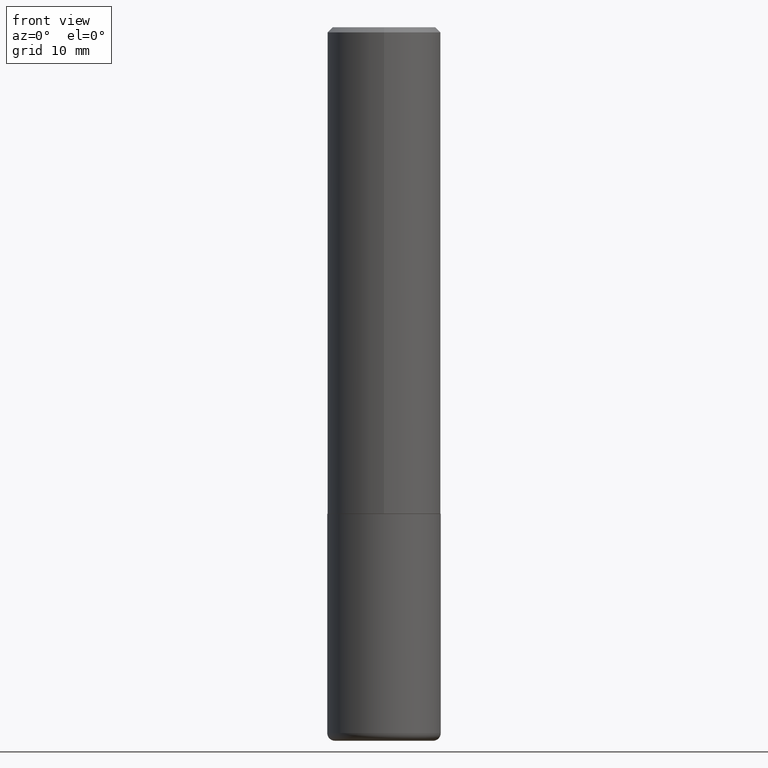
[diagram: clean part render]
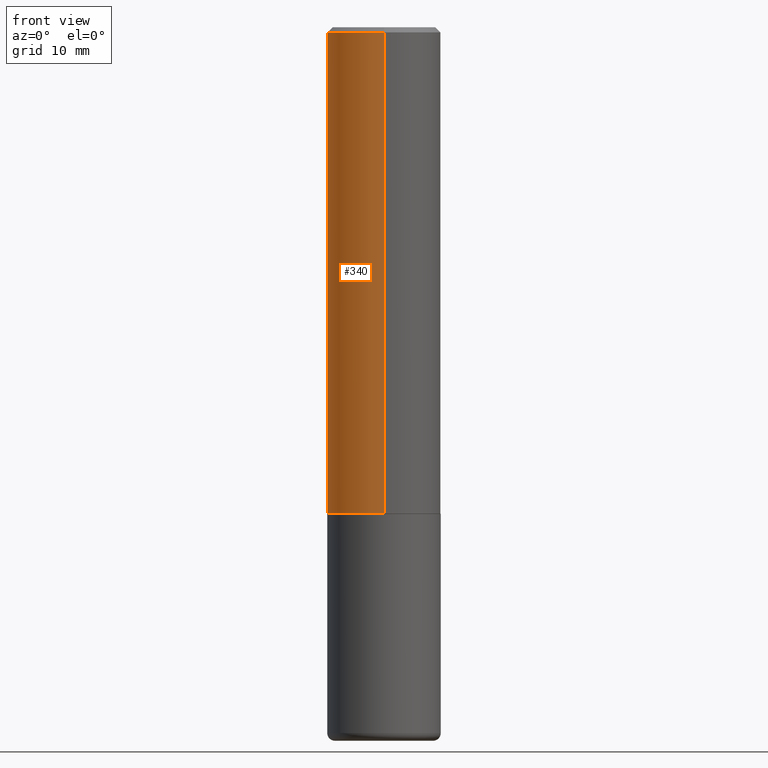
[diagram: same view with one face highlighted and labeled with its STEP entity id]
A machine part, front view. The second image highlights one B-rep face of the part: STEP entity #340.
In plain terms, the highlighted cylindrical surface (partial cylindrical patch) has radius 5.5563 mm, axis along (-0, 0, 1).
Its self-contained STEP definition (entity closure, byte-faithful):
#18 = CARTESIAN_POINT ( 'NONE',  ( 1.554312234475219551E-15, 0.2187500000000000833, -7.638981828136507804E-16 ) ) ;
#19 = CARTESIAN_POINT ( 'NONE',  ( 4.581991134734604485E-29, -6.544206603852712761E-15, -1.874000000000000110 ) ) ;
#24 = VECTOR ( 'NONE', #147, 39.37007874015748143 ) ;
#48 = EDGE_CURVE ( 'NONE', #118, #138, #390, .T. ) ;
#56 = AXIS2_PLACEMENT_3D ( 'NONE', #19, #275, #88 ) ;
#59 = EDGE_CURVE ( 'NONE', #347, #273, #200, .T. ) ;
#61 = CYLINDRICAL_SURFACE ( 'NONE', #395, 0.2187500000000000833 ) ;
#66 = DIRECTION ( 'NONE',  ( -6.982962677686265922E-15, -1.000000000000000000, 3.492105978576688042E-15 ) ) ;
#77 = ORIENTED_EDGE ( 'NONE', *, *, #48, .T. ) ;
#85 = VECTOR ( 'NONE', #327, 39.37007874015748143 ) ;
#86 = EDGE_CURVE ( 'NONE', #118, #347, #313, .T. ) ;
#87 = ORIENTED_EDGE ( 'NONE', *, *, #86, .F. ) ;
#88 = DIRECTION ( 'NONE',  ( -6.982962677686265922E-15, -1.000000000000000000, 3.746534391310986401E-15 ) ) ;
#118 = VERTEX_POINT ( 'NONE', #165 ) ;
#121 = ORIENTED_EDGE ( 'NONE', *, *, #392, .T. ) ;
#138 = VERTEX_POINT ( 'NONE', #269 ) ;
#147 = DIRECTION ( 'NONE',  ( -2.445032622590504256E-29, 3.492105978576687648E-15, 1.000000000000000000 ) ) ;
#164 = ORIENTED_EDGE ( 'NONE', *, *, #59, .F. ) ;
#165 = CARTESIAN_POINT ( 'NONE',  ( 1.554312234475242822E-15, 0.2187499999999936440, -1.874000000000000776 ) ) ;
#176 = DIRECTION ( 'NONE',  ( -2.445032622590504256E-29, 3.492105978576687648E-15, 1.000000000000000000 ) ) ;
#194 = CARTESIAN_POINT ( 'NONE',  ( -1.527523085743871237E-15, -0.2187500000000000833, 7.638981828136507804E-16 ) ) ;
#199 = LINE ( 'NONE', #194, #85 ) ;
#200 = CIRCLE ( 'NONE', #208, 0.2187499999999999445 ) ;
#208 = AXIS2_PLACEMENT_3D ( 'NONE', #214, #176, #345 ) ;
#214 = CARTESIAN_POINT ( 'NONE',  ( 4.890065245181030653E-31, -6.984211957153406209E-17, -0.02000000000000009062 ) ) ;
#247 = CARTESIAN_POINT ( 'NONE',  ( -1.500733937012521346E-15, -0.2187500000000000278, -0.01999999999999932734 ) ) ;
#252 = FACE_OUTER_BOUND ( 'NONE', #285, .T. ) ;
#269 = CARTESIAN_POINT ( 'NONE',  ( -1.527523085743826075E-15, -0.2187500000000067446, -1.873999999999999222 ) ) ;
#273 = VERTEX_POINT ( 'NONE', #247 ) ;
#275 = DIRECTION ( 'NONE',  ( -2.445032622590504256E-29, 3.492105978576687648E-15, 1.000000000000000000 ) ) ;
#285 = EDGE_LOOP ( 'NONE', ( #87, #77, #121, #164 ) ) ;
#313 = LINE ( 'NONE', #18, #24 ) ;
#327 = DIRECTION ( 'NONE',  ( -2.445032622590504256E-29, 3.492105978576687648E-15, 1.000000000000000000 ) ) ;
#338 = CARTESIAN_POINT ( 'NONE',  ( 1.527523085743870843E-15, 0.2187499999999998890, -0.02000000000000085390 ) ) ;
#340 = ADVANCED_FACE ( 'NONE', ( #252 ), #61, .T. ) ;
#345 = DIRECTION ( 'NONE',  ( -6.982962677686265922E-15, -1.000000000000000000, 3.492862791899308860E-15 ) ) ;
#347 = VERTEX_POINT ( 'NONE', #338 ) ;
#355 = DIRECTION ( 'NONE',  ( -2.445032622590504256E-29, 3.492105978576687648E-15, 1.000000000000000000 ) ) ;
#387 = CARTESIAN_POINT ( 'NONE',  ( 0.000000000000000000, 0.000000000000000000, 0.000000000000000000 ) ) ;
#390 = CIRCLE ( 'NONE', #56, 0.2187500000000001943 ) ;
#392 = EDGE_CURVE ( 'NONE', #138, #273, #199, .T. ) ;
#395 = AXIS2_PLACEMENT_3D ( 'NONE', #387, #355, #66 ) ;